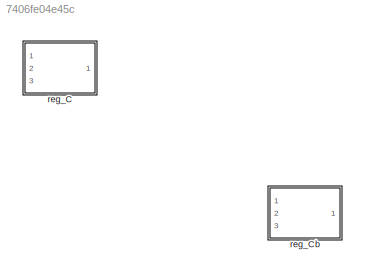
MODEL slx_7406fe04e45c
KIND model
CONFIG AbsTol = auto
CONFIG EnableMultiTasking = off
CONFIG FixedStep = auto
CONFIG MaxStep = auto
CONFIG MinStep = auto
CONFIG RelTol = 1e-3
CONFIG SampleTimeConstraint = Unconstrained
CONFIG Solver = VariableStepAuto
CONFIG SolverName = VariableStepAuto
CONFIG StartTime = 0.0
CONFIG StopTime = 10.0
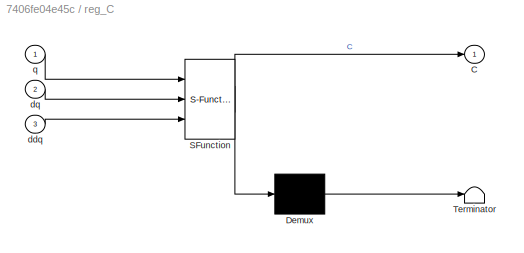
BLOCK [SubSystem] reg_C
  ErrorFcn = Stateflow.Translate.translate
  PermitHierarchicalResolution = ExplicitOnly
  Ports = [3, 1]
  RequestExecContextInheritance = off
  SFBlockType = MATLAB Function
  TreatAsAtomicUnit = on
BLOCK [Demux] reg_C/ Demux 
  Outputs = 1
  Ports = [1, 1]
BLOCK [S-Function] reg_C/ SFunction 
  EnableBusSupport = off
  FunctionName = sf_sfun
  PortCounts = [3 2]
  Ports = [3, 2]
  SFcnIsStateOwnerBlock = off
  SFunctionDeploymentMode = off
  Tag = Stateflow S-Function 2
BLOCK [Terminator] reg_C/ Terminator 
BLOCK [Outport] reg_C/C
BLOCK [Inport] reg_C/ddq
  Port = 3
BLOCK [Inport] reg_C/dq
  Port = 2
BLOCK [Inport] reg_C/q
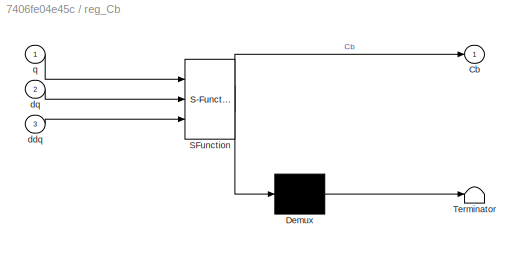
BLOCK [SubSystem] reg_Cb
  ErrorFcn = Stateflow.Translate.translate
  PermitHierarchicalResolution = ExplicitOnly
  Ports = [3, 1]
  RequestExecContextInheritance = off
  SFBlockType = MATLAB Function
  TreatAsAtomicUnit = on
BLOCK [Demux] reg_Cb/ Demux 
  Outputs = 1
  Ports = [1, 1]
BLOCK [S-Function] reg_Cb/ SFunction 
  EnableBusSupport = off
  FunctionName = sf_sfun
  PortCounts = [3 2]
  Ports = [3, 2]
  SFcnIsStateOwnerBlock = off
  SFunctionDeploymentMode = off
  Tag = Stateflow S-Function 1
BLOCK [Terminator] reg_Cb/ Terminator 
BLOCK [Outport] reg_Cb/Cb
BLOCK [Inport] reg_Cb/ddq
  Port = 3
BLOCK [Inport] reg_Cb/dq
  Port = 2
BLOCK [Inport] reg_Cb/q
CHART reg_Cb states=1 transitions=1
  STATE_LABEL 'eML_blk_kernel()'
  STATE_LABEL 'SCRIPT:\nfunction Cb = reg_Cb(q,dq,ddq)\n%#codegen\n\n%    This function was generated by the Symbolic Math Toolbox version 8.5.\n%    15-Nov-2022 11:13:43\nddq1 = ddq(1);\nddq2 = ddq(2);\ndq1  = dq(1);\ndq2  = dq(2);\nq1   = q(1);\nq2   = q(2);\n\nt2 = cos(q2);\nt3 = sin(q2);\nt4 = ddq1+ddq2;\nt5 = dq1+dq2;\nt6 = q1+q2;\nt7 = ddq1.*t2;\nt8 = cos(t6);\nt9 = ddq1.*t3;\nt10 = sin(t6);\nt11 = dq1.*dq2.*t3;\nt12 = dq1.*dq2....<+320ch>'
CHART reg_C states=1 transitions=1
  STATE_LABEL 'eML_blk_kernel()'
  STATE_LABEL 'SCRIPT:\nfunction C = reg_C(q,dq,ddq)\n%#codegen\n\n%    This function was generated by the Symbolic Math Toolbox version 8.5.\n%    15-Nov-2022 11:13:43\nddq1 = ddq(1);\nddq2 = ddq(2);\ndq1  = dq(1);\ndq2  = dq(2);\nq1   = q(1);\nq2   = q(2);\n\nt2 = cos(q1);\nt3 = cos(q2);\nt4 = sin(q2);\nt5 = ddq1+ddq2;\nt6 = dq1+dq2;\nt7 = q1+q2;\nt8 = ddq1.*t3;\nt9 = cos(t7);\nt10 = ddq1.*t4;\nt11 = sin(t7);\nt12 = dq1.*dq2.*t4;\nt1...<+457ch>'
CHART  states=0 transitions=0
CHART  states=0 transitions=0
